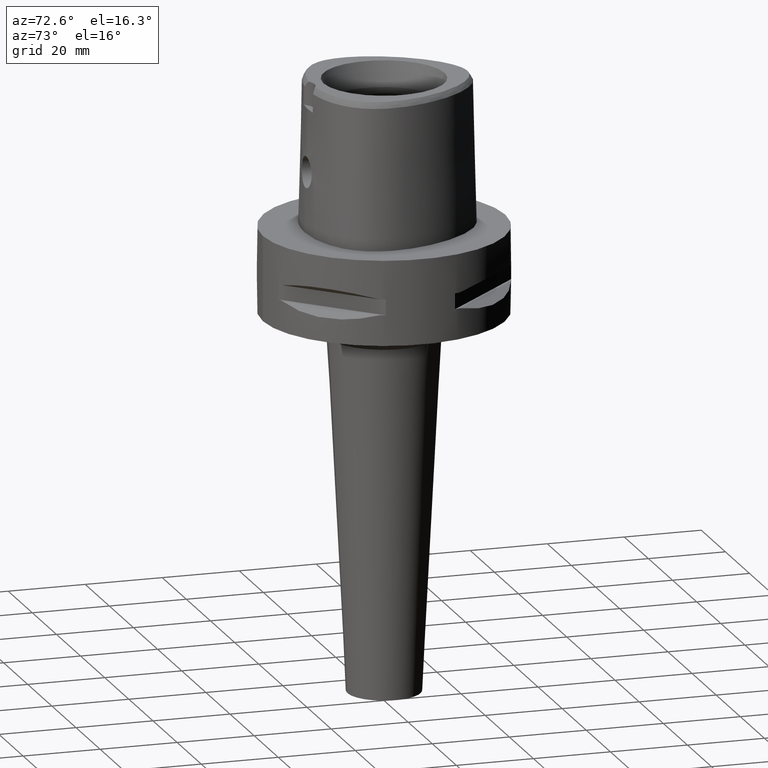
[diagram: clean part render]
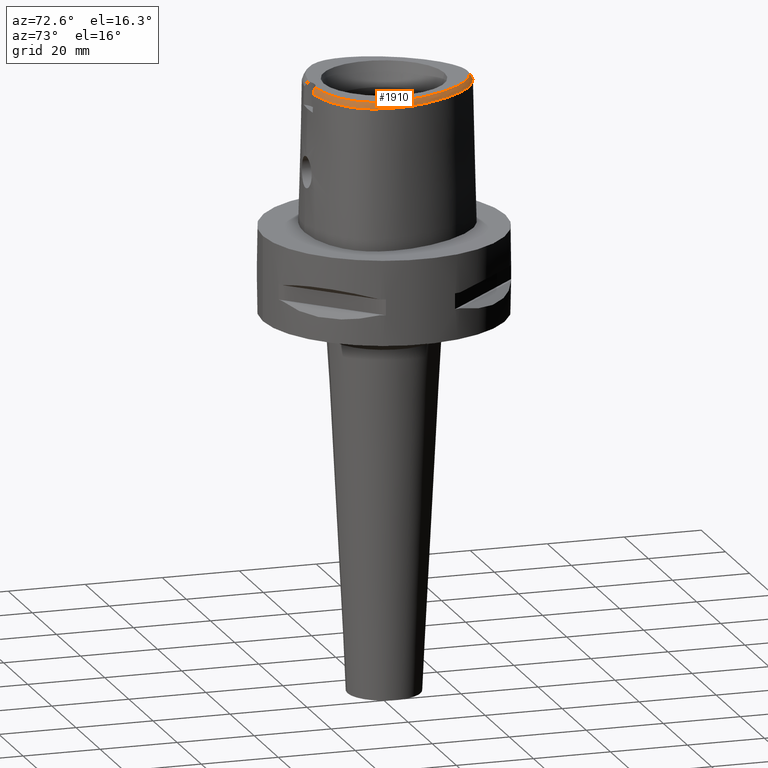
[diagram: same view with one face highlighted and labeled with its STEP entity id]
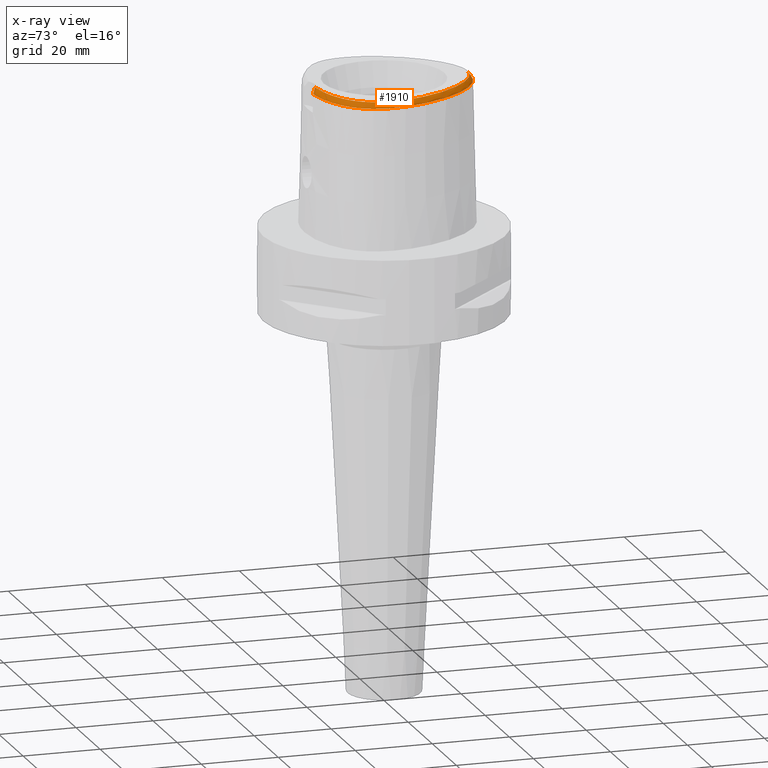
[diagram: x-ray of the same camera — body ghosted, the highlighted face saturated]
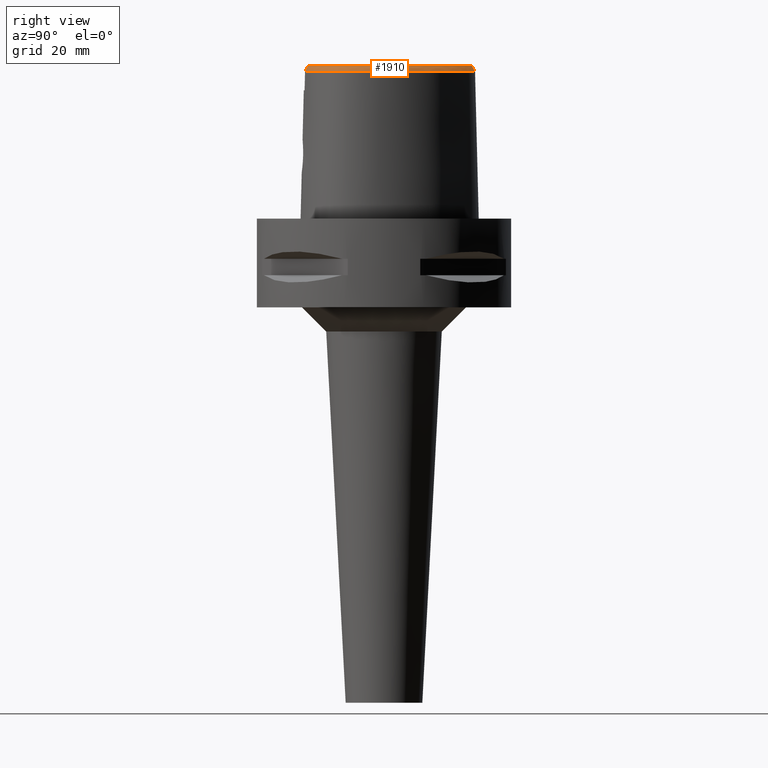
[diagram: same view with one face highlighted and labeled with its STEP entity id]
A machine part, auxiliary view. The second image highlights one B-rep face of the part: STEP entity #1910.
The next image is the same camera in x-ray: the body ghosted, the highlighted face saturated — about 0% of this face is hidden behind the body in this view.
A second angle (right view) of the same face is appended — the face is thin or edge-on in the first view.
In plain terms, the highlighted face is a freeform B-spline surface patch.
Its self-contained STEP definition (entity closure, byte-faithful):
#70=CARTESIAN_POINT('',(-3.470663397193E-11,2.168728795390E1,3.8E1));
#75=CARTESIAN_POINT('',(-3.470663397193E-11,2.168728795390E1,3.8E1));
#76=CARTESIAN_POINT('',(3.745690702022E-1,2.168728795390E1,3.8E1));
#77=CARTESIAN_POINT('',(1.141121670073E0,2.164602282739E1,3.8E1));
#78=CARTESIAN_POINT('',(2.331421374552E0,2.145407358207E1,3.8E1));
#79=CARTESIAN_POINT('',(3.597560604302E0,2.111375472189E1,3.8E1));
#80=CARTESIAN_POINT('',(4.944828382977E0,2.060227488033E1,3.8E1));
#81=CARTESIAN_POINT('',(6.372008198039E0,1.989432999611E1,3.8E1));
#82=CARTESIAN_POINT('',(7.812054278356E0,1.900692024807E1,3.8E1));
#83=CARTESIAN_POINT('',(9.250259473706E0,1.794565616581E1,3.8E1));
#84=CARTESIAN_POINT('',(1.070899074085E1,1.668389592305E1,3.8E1));
#85=CARTESIAN_POINT('',(1.226636458508E1,1.511517924803E1,3.8E1));
#86=CARTESIAN_POINT('',(1.390632606248E1,1.316720957965E1,3.8E1));
#87=CARTESIAN_POINT('',(1.544596556621E1,1.099712226089E1,3.8E1));
#88=CARTESIAN_POINT('',(1.683356521605E1,8.665673462707E0,3.8E1));
#89=CARTESIAN_POINT('',(1.801798316892E1,6.253854251018E0,3.8E1));
#90=CARTESIAN_POINT('',(1.897072838592E1,3.832103251755E0,3.8E1));
#91=CARTESIAN_POINT('',(1.964461333420E1,1.587289585537E0,3.8E1));
#92=CARTESIAN_POINT('',(2.007064400534E1,-3.787227027968E-1,3.8E1));
#93=CARTESIAN_POINT('',(2.032069917873E1,-2.193517361373E0,3.8E1));
#94=CARTESIAN_POINT('',(2.041581968121E1,-3.907814856699E0,3.8E1));
#95=CARTESIAN_POINT('',(2.036167999029E1,-5.532004691639E0,3.8E1));
#96=CARTESIAN_POINT('',(2.016886585450E1,-7.011856150934E0,3.8E1));
#97=CARTESIAN_POINT('',(1.986310556584E1,-8.323322159548E0,3.8E1));
#98=CARTESIAN_POINT('',(1.945991635336E1,-9.495368793193E0,3.8E1));
#99=CARTESIAN_POINT('',(1.897266566893E1,-1.054126145409E1,3.8E1));
#100=CARTESIAN_POINT('',(1.839307052164E1,-1.150133077041E1,3.8E1));
#101=CARTESIAN_POINT('',(1.768136960646E1,-1.243999736080E1,3.8E1));
#102=CARTESIAN_POINT('',(1.680959594209E1,-1.337046249425E1,3.8E1));
#103=CARTESIAN_POINT('',(1.576120041331E1,-1.428469220963E1,3.8E1));
#104=CARTESIAN_POINT('',(1.449640606672E1,-1.518440691187E1,3.8E1));
#105=CARTESIAN_POINT('',(1.305910619962E1,-1.601484976964E1,3.8E1));
#106=CARTESIAN_POINT('',(1.147345346428E1,-1.675805980928E1,3.8E1));
#107=CARTESIAN_POINT('',(9.712054165195E0,-1.741883825210E1,3.8E1));
#108=CARTESIAN_POINT('',(7.692172013779E0,-1.800646947015E1,3.8E1));
#109=CARTESIAN_POINT('',(5.307430346737E0,-1.849743176947E1,3.8E1));
#110=CARTESIAN_POINT('',(3.585925974635E0,-1.870802915695E1,3.8E1));
#111=CARTESIAN_POINT('',(2.682287482607E0,-1.878036330229E1,3.8E1));
#132=CARTESIAN_POINT('',(3.637738219117E0,-1.956971420299E1,3.652185956444E1));
#133=CARTESIAN_POINT('',(3.538863339859E0,-1.946485969568E1,3.671575174701E1));
#134=CARTESIAN_POINT('',(3.334950174451E0,-1.926681218343E1,3.708388732094E1));
#135=CARTESIAN_POINT('',(3.015545616116E0,-1.900475960862E1,3.757534711945E1));
#136=CARTESIAN_POINT('',(2.794296768414E0,-1.885156400671E1,3.786496432939E1));
#137=CARTESIAN_POINT('',(2.682287482607E0,-1.878036330229E1,3.8E1));
#142=CARTESIAN_POINT('',(-1.721538145818E-11,2.256201468012E1,
3.652186680744E1));
#143=CARTESIAN_POINT('',(3.965955729533E-1,2.256201468011E1,3.652186680744E1));
#144=CARTESIAN_POINT('',(1.187310560760E0,2.252092021561E1,3.652180099767E1));
#145=CARTESIAN_POINT('',(2.442402830144E0,2.232551836945E1,3.652187528945E1));
#146=CARTESIAN_POINT('',(3.761237290235E0,2.198008278182E1,3.652186366613E1));
#147=CARTESIAN_POINT('',(5.154149655883E0,2.146505907561E1,3.652187189651E1));
#148=CARTESIAN_POINT('',(6.633466693625E0,2.074994455708E1,3.652187179083E1));
#149=CARTESIAN_POINT('',(8.146336862021E0,1.983748530496E1,3.652186486213E1));
#150=CARTESIAN_POINT('',(9.645748794929E0,1.874971988199E1,3.652186781629E1));
#151=CARTESIAN_POINT('',(1.115825380455E1,1.746181591784E1,3.652186876281E1));
#152=CARTESIAN_POINT('',(1.277062784309E1,1.585988966685E1,3.652186742180E1));
#153=CARTESIAN_POINT('',(1.444428556761E1,1.390005164658E1,3.652185960901E1));
#154=CARTESIAN_POINT('',(1.602003482255E1,1.171681796203E1,3.652187260721E1));
#155=CARTESIAN_POINT('',(1.745065365791E1,9.360176696054E0,3.652185794861E1));
#156=CARTESIAN_POINT('',(1.867721988939E1,6.922274889781E0,3.652184595595E1));
#157=CARTESIAN_POINT('',(1.968004403474E1,4.452166599816E0,3.652187250658E1));
#158=CARTESIAN_POINT('',(2.040667098376E1,2.132436657727E0,3.652185903590E1));
#159=CARTESIAN_POINT('',(2.088219635987E1,5.311776789851E-2,3.652187686914E1));
#160=CARTESIAN_POINT('',(2.116494961520E1,-1.844499784482E0,3.652186168028E1));
#161=CARTESIAN_POINT('',(2.128713909480E1,-3.646830254346E0,3.652187069716E1));
#162=CARTESIAN_POINT('',(2.125212813681E1,-5.365942966314E0,3.652186573218E1));
#163=CARTESIAN_POINT('',(2.107097506962E1,-6.931985416922E0,3.652186956303E1));
#164=CARTESIAN_POINT('',(2.077090172438E1,-8.325498760265E0,3.652186895729E1));
#165=CARTESIAN_POINT('',(2.036593407355E1,-9.582351385724E0,3.652186699924E1));
#166=CARTESIAN_POINT('',(1.987141881510E1,-1.070880413084E1,3.652185947265E1));
#167=CARTESIAN_POINT('',(1.928300857661E1,-1.174219210864E1,3.652191236411E1));
#168=CARTESIAN_POINT('',(1.856968785631E1,-1.273681430106E1,3.652185866314E1));
#169=CARTESIAN_POINT('',(1.770313057004E1,-1.371653952915E1,3.652187032379E1));
#170=CARTESIAN_POINT('',(1.666640404445E1,-1.467597476383E1,3.652187211280E1));
#171=CARTESIAN_POINT('',(1.542636231136E1,-1.561771993739E1,3.652186521456E1));
#172=CARTESIAN_POINT('',(1.397658397403E1,-1.651542973955E1,3.652186949488E1));
#173=CARTESIAN_POINT('',(1.236800436784E1,-1.732348461296E1,3.652186596390E1));
#174=CARTESIAN_POINT('',(1.059931274935E1,-1.803800031448E1,3.652187551725E1));
#175=CARTESIAN_POINT('',(8.612860871698E0,-1.866939927706E1,3.652185400551E1));
#176=CARTESIAN_POINT('',(6.262379500431E0,-1.921725066217E1,3.652188114446E1));
#177=CARTESIAN_POINT('',(4.536959498075E0,-1.947390516424E1,3.652183646259E1));
#178=CARTESIAN_POINT('',(3.637738219117E0,-1.956971420299E1,3.652185956444E1));
#234=DIRECTION('',(-1.018375850969E-11,-5.092834681090E-1,8.605988316927E-1));
#235=VECTOR('',#234,1.717563559379E0);
#236=CARTESIAN_POINT('',(-1.721538145818E-11,2.256201468012E1,
3.652186680744E1));
#237=LINE('',#236,#235);
#1450=CARTESIAN_POINT('',(2.682287482605E0,-1.878036330229E1,3.8E1));
#1451=VERTEX_POINT('',#1450);
#1452=VERTEX_POINT('',#70);
#1457=VERTEX_POINT('',#132);
#1464=CARTESIAN_POINT('',(-1.721538145818E-11,2.256201468012E1,
3.652186680744E1));
#1465=VERTEX_POINT('',#1464);
#1653=CARTESIAN_POINT('',(2.065225796002E0,-1.871248139487E1,3.818809529220E1));
#1654=CARTESIAN_POINT('',(2.087725171420E0,-1.907757866540E1,3.756997542882E1));
#1655=CARTESIAN_POINT('',(2.110224546837E0,-1.944267593593E1,3.695185556544E1));
#1656=CARTESIAN_POINT('',(2.132723922255E0,-1.980777320646E1,3.633373570206E1));
#1657=CARTESIAN_POINT('',(2.268634172131E0,-1.869994426722E1,3.818809528613E1));
#1658=CARTESIAN_POINT('',(2.293363332704E0,-1.906490412879E1,3.756997544270E1));
#1659=CARTESIAN_POINT('',(2.318092493277E0,-1.942986399035E1,3.695185559928E1));
#1660=CARTESIAN_POINT('',(2.342821653850E0,-1.979482385192E1,3.633373575586E1));
#1661=CARTESIAN_POINT('',(2.634352434130E0,-1.867403136661E1,3.818809528022E1));
#1662=CARTESIAN_POINT('',(2.663103577670E0,-1.903870639230E1,3.756997545621E1));
#1663=CARTESIAN_POINT('',(2.691854721211E0,-1.940338141799E1,3.695185563221E1));
#1664=CARTESIAN_POINT('',(2.720605864751E0,-1.976805644368E1,3.633373580820E1));
#1665=CARTESIAN_POINT('',(3.517583486595E0,-1.859675995014E1,3.818809529337E1));
#1666=CARTESIAN_POINT('',(3.556124361892E0,-1.896057859776E1,3.756997542613E1));
#1667=CARTESIAN_POINT('',(3.594665237190E0,-1.932439724538E1,3.695185555889E1));
#1668=CARTESIAN_POINT('',(3.633206112487E0,-1.968821589299E1,3.633373569165E1));
#1669=CARTESIAN_POINT('',(4.699788430086E0,-1.845575074981E1,3.818809539277E1));
#1670=CARTESIAN_POINT('',(4.751669889686E0,-1.881798407446E1,3.756997519887E1));
#1671=CARTESIAN_POINT('',(4.803551349285E0,-1.918021739910E1,3.695185500498E1));
#1672=CARTESIAN_POINT('',(4.855432808884E0,-1.954245072374E1,3.633373481109E1));
#1673=CARTESIAN_POINT('',(6.175415342530E0,-1.820739469777E1,3.818809541431E1));
#1674=CARTESIAN_POINT('',(6.244690684554E0,-1.856671072380E1,3.756997514966E1));
#1675=CARTESIAN_POINT('',(6.313966026579E0,-1.892602674983E1,3.695185488500E1));
#1676=CARTESIAN_POINT('',(6.383241368604E0,-1.928534277586E1,3.633373462035E1));
#1677=CARTESIAN_POINT('',(7.580452918813E0,-1.790009183356E1,3.818809505216E1));
#1678=CARTESIAN_POINT('',(7.667164396090E0,-1.825560690048E1,3.756997597759E1));
#1679=CARTESIAN_POINT('',(7.753875873368E0,-1.861112196739E1,3.695185690301E1));
#1680=CARTESIAN_POINT('',(7.840587350645E0,-1.896663703431E1,3.633373782843E1));
#1681=CARTESIAN_POINT('',(8.905210548544E0,-1.754122027462E1,3.818809491403E1));
#1682=CARTESIAN_POINT('',(9.009412812482E0,-1.789201270947E1,3.756997629338E1));
#1683=CARTESIAN_POINT('',(9.113615076421E0,-1.824280514433E1,3.695185767273E1));
#1684=CARTESIAN_POINT('',(9.217817340360E0,-1.859359757918E1,3.633373905209E1));
#1685=CARTESIAN_POINT('',(1.014047096882E1,-1.713924516338E1,3.818809509868E1));
#1686=CARTESIAN_POINT('',(1.026220965411E1,-1.748434996012E1,3.756997587122E1));
#1687=CARTESIAN_POINT('',(1.038394833939E1,-1.782945475686E1,3.695185664376E1));
#1688=CARTESIAN_POINT('',(1.050568702468E1,-1.817455955360E1,3.633373741631E1));
#1689=CARTESIAN_POINT('',(1.128102393120E1,-1.670271677821E1,3.818809542559E1));
#1690=CARTESIAN_POINT('',(1.142032623455E1,-1.704112089784E1,3.756997512384E1));
#1691=CARTESIAN_POINT('',(1.155962853791E1,-1.737952501747E1,3.695185482208E1));
#1692=CARTESIAN_POINT('',(1.169893084126E1,-1.771792913710E1,3.633373452033E1));
#1693=CARTESIAN_POINT('',(1.232849349198E1,-1.623809503409E1,3.818809541629E1));
#1694=CARTESIAN_POINT('',(1.248534637843E1,-1.656873762488E1,3.756997514510E1));
#1695=CARTESIAN_POINT('',(1.264219926489E1,-1.689938021568E1,3.695185487391E1));
#1696=CARTESIAN_POINT('',(1.279905215134E1,-1.723002280647E1,3.633373460272E1));
#1697=CARTESIAN_POINT('',(1.328586459864E1,-1.575120811346E1,3.818809540294E1));
#1698=CARTESIAN_POINT('',(1.346017447871E1,-1.607299813860E1,3.756997517562E1));
#1699=CARTESIAN_POINT('',(1.363448435878E1,-1.639478816374E1,3.695185494830E1));
#1700=CARTESIAN_POINT('',(1.380879423885E1,-1.671657818888E1,3.633373472098E1));
#1701=CARTESIAN_POINT('',(1.415550544317E1,-1.524796483826E1,3.818809533810E1));
#1702=CARTESIAN_POINT('',(1.434714604541E1,-1.555975360131E1,3.756997532388E1));
#1703=CARTESIAN_POINT('',(1.453878664765E1,-1.587154236436E1,3.695185530966E1));
#1704=CARTESIAN_POINT('',(1.473042724989E1,-1.618333112741E1,3.633373529544E1));
#1705=CARTESIAN_POINT('',(1.494277200377E1,-1.473237642791E1,3.818809528416E1));
#1706=CARTESIAN_POINT('',(1.515149576361E1,-1.503300603845E1,3.756997544719E1));
#1707=CARTESIAN_POINT('',(1.536021952345E1,-1.533363564900E1,3.695185561021E1));
#1708=CARTESIAN_POINT('',(1.556894328329E1,-1.563426525954E1,3.633373577324E1));
#1709=CARTESIAN_POINT('',(1.565217035073E1,-1.420843236311E1,3.818809537944E1));
#1710=CARTESIAN_POINT('',(1.587765904109E1,-1.449671096568E1,3.756997522937E1));
#1711=CARTESIAN_POINT('',(1.610314773145E1,-1.478498956824E1,3.695185507930E1));
#1712=CARTESIAN_POINT('',(1.632863642181E1,-1.507326817080E1,3.633373492924E1));
#1713=CARTESIAN_POINT('',(1.628924494403E1,-1.367876845088E1,3.818809541755E1));
#1714=CARTESIAN_POINT('',(1.653108132114E1,-1.395348736102E1,3.756997514224E1));
#1715=CARTESIAN_POINT('',(1.677291769825E1,-1.422820627115E1,3.695185486693E1));
#1716=CARTESIAN_POINT('',(1.701475407536E1,-1.450292518129E1,3.633373459162E1));
#1717=CARTESIAN_POINT('',(1.686015181236E1,-1.314466554878E1,3.818809540574E1));
#1718=CARTESIAN_POINT('',(1.711778958587E1,-1.340463358304E1,3.756997516921E1));
#1719=CARTESIAN_POINT('',(1.737542735939E1,-1.366460161730E1,3.695185493268E1));
#1720=CARTESIAN_POINT('',(1.763306513291E1,-1.392456965156E1,3.633373469615E1));
#1721=CARTESIAN_POINT('',(1.737005483005E1,-1.260730067614E1,3.818809538872E1));
#1722=CARTESIAN_POINT('',(1.764283604861E1,-1.285134186589E1,3.756997520814E1));
#1723=CARTESIAN_POINT('',(1.791561726717E1,-1.309538305564E1,3.695185502756E1));
#1724=CARTESIAN_POINT('',(1.818839848572E1,-1.333942424540E1,3.633373484698E1));
#1725=CARTESIAN_POINT('',(1.782427397725E1,-1.206668442567E1,3.818809532534E1));
#1726=CARTESIAN_POINT('',(1.811141838251E1,-1.229366092154E1,3.756997535306E1));
#1727=CARTESIAN_POINT('',(1.839856278777E1,-1.252063741741E1,3.695185538079E1));
#1728=CARTESIAN_POINT('',(1.868570719302E1,-1.274761391328E1,3.633373540852E1));
#1729=CARTESIAN_POINT('',(1.822736793916E1,-1.152240554001E1,3.818809542895E1));
#1730=CARTESIAN_POINT('',(1.852796104073E1,-1.173125303538E1,3.756997511616E1));
#1731=CARTESIAN_POINT('',(1.882855414231E1,-1.194010053076E1,3.695185480337E1));
#1732=CARTESIAN_POINT('',(1.912914724388E1,-1.214894802614E1,3.633373449059E1));
#1733=CARTESIAN_POINT('',(1.858197160061E1,-1.097599353477E1,3.818809537231E1));
#1734=CARTESIAN_POINT('',(1.889500737902E1,-1.116569929350E1,3.756997524567E1));
#1735=CARTESIAN_POINT('',(1.920804315743E1,-1.135540505223E1,3.695185511902E1));
#1736=CARTESIAN_POINT('',(1.952107893584E1,-1.154511081096E1,3.633373499238E1));
#1737=CARTESIAN_POINT('',(1.889747451561E1,-1.041621320249E1,3.818809542901E1));
#1738=CARTESIAN_POINT('',(1.922188142512E1,-1.058573851700E1,3.756997511602E1));
#1739=CARTESIAN_POINT('',(1.954628833462E1,-1.075526383151E1,3.695185480303E1));
#1740=CARTESIAN_POINT('',(1.987069524413E1,-1.092478914601E1,3.633373449004E1));
#1741=CARTESIAN_POINT('',(1.918504815080E1,-9.822399104744E0,3.818809537347E1));
#1742=CARTESIAN_POINT('',(1.951934506306E1,-9.971454940679E0,3.756997524301E1));
#1743=CARTESIAN_POINT('',(1.985364197533E1,-1.012051077661E1,3.695185511256E1));
#1744=CARTESIAN_POINT('',(2.018793888760E1,-1.026956661255E1,3.633373498211E1));
#1745=CARTESIAN_POINT('',(1.944561089957E1,-9.187189667775E0,3.818809534273E1));
#1746=CARTESIAN_POINT('',(1.978842911164E1,-9.315426532631E0,3.756997531330E1));
#1747=CARTESIAN_POINT('',(2.013124732372E1,-9.443663397486E0,3.695185528387E1));
#1748=CARTESIAN_POINT('',(2.047406553580E1,-9.571900262341E0,3.633373525444E1));
#1749=CARTESIAN_POINT('',(1.967673946113E1,-8.508531570776E0,3.818809539835E1));
#1750=CARTESIAN_POINT('',(2.002669626399E1,-8.615742922568E0,3.756997518611E1));
#1751=CARTESIAN_POINT('',(2.037665306685E1,-8.722954274359E0,3.695185497386E1));
#1752=CARTESIAN_POINT('',(2.072660986972E1,-8.830165626150E0,3.633373476162E1));
#1753=CARTESIAN_POINT('',(1.987643653529E1,-7.781667723569E0,3.818809541025E1));
#1754=CARTESIAN_POINT('',(2.023216253601E1,-7.867794644326E0,3.756997515892E1));
#1755=CARTESIAN_POINT('',(2.058788853673E1,-7.953921565084E0,3.695185490758E1));
#1756=CARTESIAN_POINT('',(2.094361453745E1,-8.040048485842E0,3.633373465625E1));
#1757=CARTESIAN_POINT('',(2.004167380672E1,-7.002369001700E0,3.818809541652E1));
#1758=CARTESIAN_POINT('',(2.040183455814E1,-7.067466932451E0,3.756997514459E1));
#1759=CARTESIAN_POINT('',(2.076199530956E1,-7.132564863201E0,3.695185487266E1));
#1760=CARTESIAN_POINT('',(2.112215606099E1,-7.197662793952E0,3.633373460073E1));
#1761=CARTESIAN_POINT('',(2.016868301552E1,-6.166392828213E0,3.818809534226E1));
#1762=CARTESIAN_POINT('',(2.053199000870E1,-6.210617453969E0,3.756997531437E1));
#1763=CARTESIAN_POINT('',(2.089529700188E1,-6.254842079725E0,3.695185528647E1));
#1764=CARTESIAN_POINT('',(2.125860399506E1,-6.299066705481E0,3.633373525857E1));
#1765=CARTESIAN_POINT('',(2.025298512446E1,-5.269194745642E0,3.818809528082E1));
#1766=CARTESIAN_POINT('',(2.061820218477E1,-5.292824806804E0,3.756997545484E1));
#1767=CARTESIAN_POINT('',(2.098341924508E1,-5.316454867966E0,3.695185562886E1));
#1768=CARTESIAN_POINT('',(2.134863630540E1,-5.340084929128E0,3.633373580288E1));
#1769=CARTESIAN_POINT('',(2.028925958451E1,-4.308308289246E0,3.818809537625E1));
#1770=CARTESIAN_POINT('',(2.065521740262E1,-4.311682137038E0,3.756997523666E1));
#1771=CARTESIAN_POINT('',(2.102117522073E1,-4.315055984830E0,3.695185509708E1));
#1772=CARTESIAN_POINT('',(2.138713303884E1,-4.318429832622E0,3.633373495750E1));
#1773=CARTESIAN_POINT('',(2.027167064502E1,-3.281296296839E0,3.818809539931E1));
#1774=CARTESIAN_POINT('',(2.063726460656E1,-3.264806777431E0,3.756997518393E1));
#1775=CARTESIAN_POINT('',(2.100285856810E1,-3.248317258022E0,3.695185496855E1));
#1776=CARTESIAN_POINT('',(2.136845252965E1,-3.231827738614E0,3.633373475317E1));
#1777=CARTESIAN_POINT('',(2.019395791558E1,-2.186264706926E0,3.818809544620E1));
#1778=CARTESIAN_POINT('',(2.055815393229E1,-2.150389177225E0,3.756997507673E1));
#1779=CARTESIAN_POINT('',(2.092234994901E1,-2.114513647524E0,3.695185470727E1));
#1780=CARTESIAN_POINT('',(2.128654596572E1,-2.078638117823E0,3.633373433781E1));
#1781=CARTESIAN_POINT('',(2.004972529597E1,-1.024398436469E0,3.818809533590E1));
#1782=CARTESIAN_POINT('',(2.041155045350E1,-9.695943460511E-1,
3.756997532891E1));
#1783=CARTESIAN_POINT('',(2.077337561103E1,-9.147902556331E-1,
3.695185532191E1));
#1784=CARTESIAN_POINT('',(2.113520076857E1,-8.599861652151E-1,
3.633373531491E1));
#1785=CARTESIAN_POINT('',(1.983239169270E1,2.038868542173E-1,3.818809499131E1));
#1786=CARTESIAN_POINT('',(2.019094483490E1,2.770698615076E-1,3.756997611671E1));
#1787=CARTESIAN_POINT('',(2.054949797709E1,3.502528687980E-1,3.695185724211E1));
#1788=CARTESIAN_POINT('',(2.090805111929E1,4.234358760883E-1,3.633373836751E1));
#1789=CARTESIAN_POINT('',(1.953602256953E1,1.494344456177E0,3.818809490487E1));
#1790=CARTESIAN_POINT('',(1.989045691128E1,1.585385367979E0,3.756997631433E1));
#1791=CARTESIAN_POINT('',(2.024489125303E1,1.676426279781E0,3.695185772379E1));
#1792=CARTESIAN_POINT('',(2.059932559479E1,1.767467191583E0,3.633373913325E1));
#1793=CARTESIAN_POINT('',(1.915636941566E1,2.837249252738E0,3.818809515663E1));
#1794=CARTESIAN_POINT('',(1.950588888768E1,2.945623858176E0,3.756997573875E1));
#1795=CARTESIAN_POINT('',(1.985540835969E1,3.053998463614E0,3.695185632087E1));
#1796=CARTESIAN_POINT('',(2.020492783171E1,3.162373069052E0,3.633373690299E1));
#1797=CARTESIAN_POINT('',(1.869131978265E1,4.219647873652E0,3.818809546622E1));
#1798=CARTESIAN_POINT('',(1.903515848279E1,4.344872337090E0,3.756997503098E1));
#1799=CARTESIAN_POINT('',(1.937899718294E1,4.470096800529E0,3.695185459574E1));
#1800=CARTESIAN_POINT('',(1.972283588309E1,4.595321263967E0,3.633373416051E1));
#1801=CARTESIAN_POINT('',(1.813979044502E1,5.629468478500E0,3.818809535704E1));
#1802=CARTESIAN_POINT('',(1.847722447955E1,5.771038984100E0,3.756997528057E1));
#1803=CARTESIAN_POINT('',(1.881465851407E1,5.912609489700E0,3.695185520410E1));
#1804=CARTESIAN_POINT('',(1.915209254859E1,6.054179995300E0,3.633373512763E1));
#1805=CARTESIAN_POINT('',(1.750321984689E1,7.051971053374E0,3.818809527663E1));
#1806=CARTESIAN_POINT('',(1.783354037182E1,7.209421689840E0,3.756997546440E1));
#1807=CARTESIAN_POINT('',(1.816386089675E1,7.366872326307E0,3.695185565217E1));
#1808=CARTESIAN_POINT('',(1.849418142168E1,7.524322962773E0,3.633373583994E1));
#1809=CARTESIAN_POINT('',(1.678785899129E1,8.466099138228E0,3.818809535093E1));
#1810=CARTESIAN_POINT('',(1.711036940011E1,8.638983410327E0,3.756997529454E1));
#1811=CARTESIAN_POINT('',(1.743287980892E1,8.811867682425E0,3.695185523816E1));
#1812=CARTESIAN_POINT('',(1.775539021774E1,8.984751954524E0,3.633373518177E1));
#1813=CARTESIAN_POINT('',(1.600211153107E1,9.852220999532E0,3.818809539315E1));
#1814=CARTESIAN_POINT('',(1.631608800243E1,1.004015885537E1,3.756997519801E1));
#1815=CARTESIAN_POINT('',(1.663006447380E1,1.022809671120E1,3.695185500287E1));
#1816=CARTESIAN_POINT('',(1.694404094517E1,1.041603456704E1,3.633373480774E1));
#1817=CARTESIAN_POINT('',(1.515388072928E1,1.119599144525E1,3.818809527994E1));
#1818=CARTESIAN_POINT('',(1.545863351834E1,1.139854466556E1,3.756997545683E1));
#1819=CARTESIAN_POINT('',(1.576338630740E1,1.160109788588E1,3.695185563371E1));
#1820=CARTESIAN_POINT('',(1.606813909646E1,1.180365110620E1,3.633373581060E1));
#1821=CARTESIAN_POINT('',(1.425412795458E1,1.248189993262E1,3.818809531252E1));
#1822=CARTESIAN_POINT('',(1.454893110065E1,1.269868186839E1,3.756997538234E1));
#1823=CARTESIAN_POINT('',(1.484373424671E1,1.291546380417E1,3.695185545216E1));
#1824=CARTESIAN_POINT('',(1.513853739277E1,1.313224573994E1,3.633373552197E1));
#1825=CARTESIAN_POINT('',(1.331784904290E1,1.369256312774E1,3.818809545425E1));
#1826=CARTESIAN_POINT('',(1.360195803773E1,1.392318735848E1,3.756997505834E1));
#1827=CARTESIAN_POINT('',(1.388606703256E1,1.415381158923E1,3.695185466242E1));
#1828=CARTESIAN_POINT('',(1.417017602739E1,1.438443581998E1,3.633373426650E1));
#1829=CARTESIAN_POINT('',(1.235829956712E1,1.481689940669E1,3.818809529489E1));
#1830=CARTESIAN_POINT('',(1.263091652424E1,1.506100595267E1,3.756997542266E1));
#1831=CARTESIAN_POINT('',(1.290353348136E1,1.530511249864E1,3.695185555044E1));
#1832=CARTESIAN_POINT('',(1.317615043848E1,1.554921904462E1,3.633373567821E1));
#1833=CARTESIAN_POINT('',(1.138664984534E1,1.584891956726E1,3.818809495671E1));
#1834=CARTESIAN_POINT('',(1.164698844384E1,1.610608634646E1,3.756997619580E1));
#1835=CARTESIAN_POINT('',(1.190732704234E1,1.636325312565E1,3.695185743488E1));
#1836=CARTESIAN_POINT('',(1.216766564084E1,1.662041990485E1,3.633373867396E1));
#1837=CARTESIAN_POINT('',(1.041476619864E1,1.678387077496E1,3.818809493399E1));
#1838=CARTESIAN_POINT('',(1.066198486847E1,1.705368117548E1,3.756997624777E1));
#1839=CARTESIAN_POINT('',(1.090920353829E1,1.732349157601E1,3.695185756155E1));
#1840=CARTESIAN_POINT('',(1.115642220812E1,1.759330197654E1,3.633373887534E1));
#1841=CARTESIAN_POINT('',(9.453868925696E0,1.761935221010E1,3.818809521877E1));
#1842=CARTESIAN_POINT('',(9.687103821605E0,1.790134650862E1,3.756997559671E1));
#1843=CARTESIAN_POINT('',(9.920338717515E0,1.818334080715E1,3.695185597466E1));
#1844=CARTESIAN_POINT('',(1.015357361342E1,1.846533510567E1,3.633373635260E1));
#1845=CARTESIAN_POINT('',(8.512408941110E0,1.835672732803E1,3.818809545606E1));
#1846=CARTESIAN_POINT('',(8.730741737430E0,1.865041929097E1,3.756997505419E1));
#1847=CARTESIAN_POINT('',(8.949074533749E0,1.894411125390E1,3.695185465232E1));
#1848=CARTESIAN_POINT('',(9.167407330069E0,1.923780321684E1,3.633373425046E1));
#1849=CARTESIAN_POINT('',(7.594328844270E0,1.900127707123E1,3.818809539062E1));
#1850=CARTESIAN_POINT('',(7.796870679651E0,1.930608160834E1,3.756997520380E1));
#1851=CARTESIAN_POINT('',(7.999412515032E0,1.961088614546E1,3.695185501698E1));
#1852=CARTESIAN_POINT('',(8.201954350414E0,1.991569068257E1,3.633373483016E1));
#1853=CARTESIAN_POINT('',(6.703730739509E0,1.955810736710E1,3.818809539486E1));
#1854=CARTESIAN_POINT('',(6.889567836421E0,1.987338373533E1,3.756997519409E1));
#1855=CARTESIAN_POINT('',(7.075404933332E0,2.018866010355E1,3.695185499333E1));
#1856=CARTESIAN_POINT('',(7.261242030244E0,2.050393647178E1,3.633373479256E1));
#1857=CARTESIAN_POINT('',(5.843299020988E0,2.003295707039E1,3.818809532214E1));
#1858=CARTESIAN_POINT('',(6.011514392756E0,2.035798582299E1,3.756997536034E1));
#1859=CARTESIAN_POINT('',(6.179729764524E0,2.068301457559E1,3.695185539854E1));
#1860=CARTESIAN_POINT('',(6.347945136291E0,2.100804332819E1,3.633373543674E1));
#1861=CARTESIAN_POINT('',(5.013690306136E0,2.043236720177E1,3.818809533804E1));
#1862=CARTESIAN_POINT('',(5.163406400395E0,2.076632966978E1,3.756997532401E1));
#1863=CARTESIAN_POINT('',(5.313122494654E0,2.110029213780E1,3.695185530999E1));
#1864=CARTESIAN_POINT('',(5.462838588913E0,2.143425460581E1,3.633373529597E1));
#1865=CARTESIAN_POINT('',(4.215997365829E0,2.076211004648E1,3.818809539848E1));
#1866=CARTESIAN_POINT('',(4.346340366741E0,2.110410760608E1,3.756997518581E1));
#1867=CARTESIAN_POINT('',(4.476683367653E0,2.144610516568E1,3.695185497314E1));
#1868=CARTESIAN_POINT('',(4.607026368565E0,2.178810272527E1,3.633373476047E1));
#1869=CARTESIAN_POINT('',(3.448663154909E0,2.102851753723E1,3.818809534299E1));
#1870=CARTESIAN_POINT('',(3.558832959564E0,2.137754429531E1,3.756997531268E1));
#1871=CARTESIAN_POINT('',(3.669002764219E0,2.172657105339E1,3.695185528236E1));
#1872=CARTESIAN_POINT('',(3.779172568874E0,2.207559781146E1,3.633373525205E1));
#1873=CARTESIAN_POINT('',(2.709771853832E0,2.123726471192E1,3.818809532797E1));
#1874=CARTESIAN_POINT('',(2.799027956918E0,2.159222322157E1,3.756997534704E1));
#1875=CARTESIAN_POINT('',(2.888284060003E0,2.194718173122E1,3.695185536611E1));
#1876=CARTESIAN_POINT('',(2.977540163089E0,2.230214024086E1,3.633373538517E1));
#1877=CARTESIAN_POINT('',(1.997721963237E0,2.139310699732E1,3.818809539694E1));
#1878=CARTESIAN_POINT('',(2.065412599222E0,2.175280881133E1,3.756997518934E1));
#1879=CARTESIAN_POINT('',(2.133103235208E0,2.211251062535E1,3.695185498174E1));
#1880=CARTESIAN_POINT('',(2.200793871193E0,2.247221243937E1,3.633373477414E1));
#1881=CARTESIAN_POINT('',(1.311160532866E0,2.150029881882E1,3.818809546292E1));
#1882=CARTESIAN_POINT('',(1.356706218766E0,2.186347493534E1,3.756997503850E1));
#1883=CARTESIAN_POINT('',(1.402251904667E0,2.222665105185E1,3.695185461407E1));
#1884=CARTESIAN_POINT('',(1.447797590567E0,2.258982716836E1,3.633373418965E1));
#1885=CARTESIAN_POINT('',(6.443269212520E-1,2.156254561095E1,3.818809542327E1));
#1886=CARTESIAN_POINT('',(6.673106900020E-1,2.192785138574E1,3.756997512917E1));
#1887=CARTESIAN_POINT('',(6.902944587520E-1,2.229315716052E1,3.695185483506E1));
#1888=CARTESIAN_POINT('',(7.132782275020E-1,2.265846293530E1,3.633373454096E1));
#1889=CARTESIAN_POINT('',(2.235456859999E-2,2.158206136568E1,3.818809535763E1));
#1890=CARTESIAN_POINT('',(2.304400242329E-2,2.194807053927E1,3.756997527923E1));
#1891=CARTESIAN_POINT('',(2.373343624659E-2,2.231407971286E1,3.695185520082E1));
#1892=CARTESIAN_POINT('',(2.442287006989E-2,2.268008888644E1,3.633373512241E1));
#1893=CARTESIAN_POINT('',(-3.936539557584E-1,2.157046542687E1,
3.818809539663E1));
#1894=CARTESIAN_POINT('',(-4.074698423496E-1,2.193605665251E1,
3.756997519006E1));
#1895=CARTESIAN_POINT('',(-4.212857289408E-1,2.230164787816E1,
3.695185498349E1));
#1896=CARTESIAN_POINT('',(-4.351016155320E-1,2.266723910381E1,
3.633373477693E1));
#1897=CARTESIAN_POINT('',(-5.979326462702E-1,2.155966537846E1,
3.818809545397E1));
#1898=CARTESIAN_POINT('',(-6.185365982286E-1,2.192485323021E1,
3.756997505894E1));
#1899=CARTESIAN_POINT('',(-6.391405501869E-1,2.229004108196E1,
3.695185466391E1));
#1900=CARTESIAN_POINT('',(-6.597445021453E-1,2.265522893372E1,
3.633373426887E1));
#1901=B_SPLINE_SURFACE_WITH_KNOTS('',3,3,((#1653,#1654,#1655,#1656),(#1657,
#1658,#1659,#1660),(#1661,#1662,#1663,#1664),(#1665,#1666,#1667,#1668),(#1669,
#1670,#1671,#1672),(#1673,#1674,#1675,#1676),(#1677,#1678,#1679,#1680),(#1681,
#1682,#1683,#1684),(#1685,#1686,#1687,#1688),(#1689,#1690,#1691,#1692),(#1693,
#1694,#1695,#1696),(#1697,#1698,#1699,#1700),(#1701,#1702,#1703,#1704),(#1705,
#1706,#1707,#1708),(#1709,#1710,#1711,#1712),(#1713,#1714,#1715,#1716),(#1717,
#1718,#1719,#1720),(#1721,#1722,#1723,#1724),(#1725,#1726,#1727,#1728),(#1729,
#1730,#1731,#1732),(#1733,#1734,#1735,#1736),(#1737,#1738,#1739,#1740),(#1741,
#1742,#1743,#1744),(#1745,#1746,#1747,#1748),(#1749,#1750,#1751,#1752),(#1753,
#1754,#1755,#1756),(#1757,#1758,#1759,#1760),(#1761,#1762,#1763,#1764),(#1765,
#1766,#1767,#1768),(#1769,#1770,#1771,#1772),(#1773,#1774,#1775,#1776),(#1777,
#1778,#1779,#1780),(#1781,#1782,#1783,#1784),(#1785,#1786,#1787,#1788),(#1789,
#1790,#1791,#1792),(#1793,#1794,#1795,#1796),(#1797,#1798,#1799,#1800),(#1801,
#1802,#1803,#1804),(#1805,#1806,#1807,#1808),(#1809,#1810,#1811,#1812),(#1813,
#1814,#1815,#1816),(#1817,#1818,#1819,#1820),(#1821,#1822,#1823,#1824),(#1825,
#1826,#1827,#1828),(#1829,#1830,#1831,#1832),(#1833,#1834,#1835,#1836),(#1837,
#1838,#1839,#1840),(#1841,#1842,#1843,#1844),(#1845,#1846,#1847,#1848),(#1849,
#1850,#1851,#1852),(#1853,#1854,#1855,#1856),(#1857,#1858,#1859,#1860),(#1861,
#1862,#1863,#1864),(#1865,#1866,#1867,#1868),(#1869,#1870,#1871,#1872),(#1873,
#1874,#1875,#1876),(#1877,#1878,#1879,#1880),(#1881,#1882,#1883,#1884),(#1885,
#1886,#1887,#1888),(#1889,#1890,#1891,#1892),(#1893,#1894,#1895,#1896),(#1897,
#1898,#1899,#1900)),.UNSPECIFIED.,.F.,.F.,.F.,(4,1,1,1,1,1,1,1,1,1,1,1,1,1,1,1,
1,1,1,1,1,1,1,1,1,1,1,1,1,1,1,1,1,1,1,1,1,1,1,1,1,1,1,1,1,1,1,1,1,1,1,1,1,1,1,1,
1,1,1,4),(4,4),(-6.872922983042E-3,0.E0,5.521655259608E-3,2.328019712995E-2,
4.103873900030E-2,5.879728087064E-2,7.655582274102E-2,9.431436461132E-2,
1.120729064817E-1,1.298314483520E-1,1.475899902223E-1,1.653485320927E-1,
1.831070739630E-1,2.008656158334E-1,2.186241577037E-1,2.363826995741E-1,
2.541412414444E-1,2.718997833148E-1,2.896583251851E-1,3.074168670555E-1,
3.251754089258E-1,3.429339507961E-1,3.606924926665E-1,3.784510345368E-1,
3.962095764072E-1,4.139681182775E-1,4.317266601479E-1,4.494852020182E-1,
4.672437438886E-1,4.850022857589E-1,5.027608276292E-1,5.205193694996E-1,
5.382779113699E-1,5.560364532403E-1,5.737949951106E-1,5.915535369810E-1,
6.093120788513E-1,6.270706207217E-1,6.448291625920E-1,6.625877044623E-1,
6.803462463327E-1,6.981047882030E-1,7.158633300734E-1,7.336218719437E-1,
7.513804138142E-1,7.691389556845E-1,7.868974975549E-1,8.046560394252E-1,
8.224145812956E-1,8.401731231659E-1,8.579316650362E-1,8.756902069066E-1,
8.934487487769E-1,9.112072906473E-1,9.289658325176E-1,9.467243743880E-1,
9.644829162583E-1,9.822414581287E-1,1.E0,1.016088127154E0),(-1.031262593695E-1,
1.103144917099E0),.UNSPECIFIED.);
#1902=ORIENTED_EDGE('',*,*,#1638,.T.);
#1903=ORIENTED_EDGE('',*,*,#1620,.F.);
#1905=ORIENTED_EDGE('',*,*,#1904,.F.);
#1907=ORIENTED_EDGE('',*,*,#1906,.T.);
#1908=EDGE_LOOP('',(#1902,#1903,#1905,#1907));
#1909=FACE_OUTER_BOUND('',#1908,.F.);
#112=B_SPLINE_CURVE_WITH_KNOTS('',3,(#75,#76,#77,#78,#79,#80,#81,#82,#83,#84,
#85,#86,#87,#88,#89,#90,#91,#92,#93,#94,#95,#96,#97,#98,#99,#100,#101,#102,#103,
#104,#105,#106,#107,#108,#109,#110,#111),.UNSPECIFIED.,.F.,.F.,(4,1,1,1,1,1,1,1,
1,1,1,1,1,1,1,1,1,1,1,1,1,1,1,1,1,1,1,1,1,1,1,1,1,1,4),(0.E0,2.941176470588E-2,
5.882352941176E-2,8.823529411765E-2,1.176470588235E-1,1.470588235294E-1,
1.764705882353E-1,2.058823529412E-1,2.352941176471E-1,2.647058823529E-1,
2.941176470588E-1,3.235294117647E-1,3.529411764706E-1,3.823529411765E-1,
4.117647058824E-1,4.411764705882E-1,4.705882352941E-1,5.E-1,5.294117647059E-1,
5.588235294118E-1,5.882352941176E-1,6.176470588235E-1,6.470588235294E-1,
6.764705882353E-1,7.058823529412E-1,7.352941176471E-1,7.647058823529E-1,
7.941176470588E-1,8.235294117647E-1,8.529411764706E-1,8.823529411765E-1,
9.117647058824E-1,9.411764705882E-1,9.705882352941E-1,1.E0),.UNSPECIFIED.);
#138=B_SPLINE_CURVE_WITH_KNOTS('',3,(#132,#133,#134,#135,#136,#137),
.UNSPECIFIED.,.F.,.F.,(4,1,1,4),(0.E0,3.333333333333E-1,6.666666666667E-1,1.E0),
.UNSPECIFIED.);
#179=B_SPLINE_CURVE_WITH_KNOTS('',3,(#142,#143,#144,#145,#146,#147,#148,#149,
#150,#151,#152,#153,#154,#155,#156,#157,#158,#159,#160,#161,#162,#163,#164,#165,
#166,#167,#168,#169,#170,#171,#172,#173,#174,#175,#176,#177,#178),.UNSPECIFIED.,
.F.,.F.,(4,1,1,1,1,1,1,1,1,1,1,1,1,1,1,1,1,1,1,1,1,1,1,1,1,1,1,1,1,1,1,1,1,1,4),
(0.E0,2.941176470588E-2,5.882352941176E-2,8.823529411765E-2,1.176470588235E-1,
1.470588235294E-1,1.764705882353E-1,2.058823529412E-1,2.352941176471E-1,
2.647058823529E-1,2.941176470588E-1,3.235294117647E-1,3.529411764706E-1,
3.823529411765E-1,4.117647058824E-1,4.411764705882E-1,4.705882352941E-1,5.E-1,
5.294117647059E-1,5.588235294118E-1,5.882352941176E-1,6.176470588235E-1,
6.470588235294E-1,6.764705882353E-1,7.058823529412E-1,7.352941176471E-1,
7.647058823529E-1,7.941176470588E-1,8.235294117647E-1,8.529411764706E-1,
8.823529411765E-1,9.117647058824E-1,9.411764705882E-1,9.705882352941E-1,1.E0),
.UNSPECIFIED.);
#1620=EDGE_CURVE('',#1452,#1451,#112,.T.);
#1638=EDGE_CURVE('',#1457,#1451,#138,.T.);
#1904=EDGE_CURVE('',#1465,#1452,#237,.T.);
#1906=EDGE_CURVE('',#1465,#1457,#179,.T.);
#1910=ADVANCED_FACE('',(#1909),#1901,.F.);